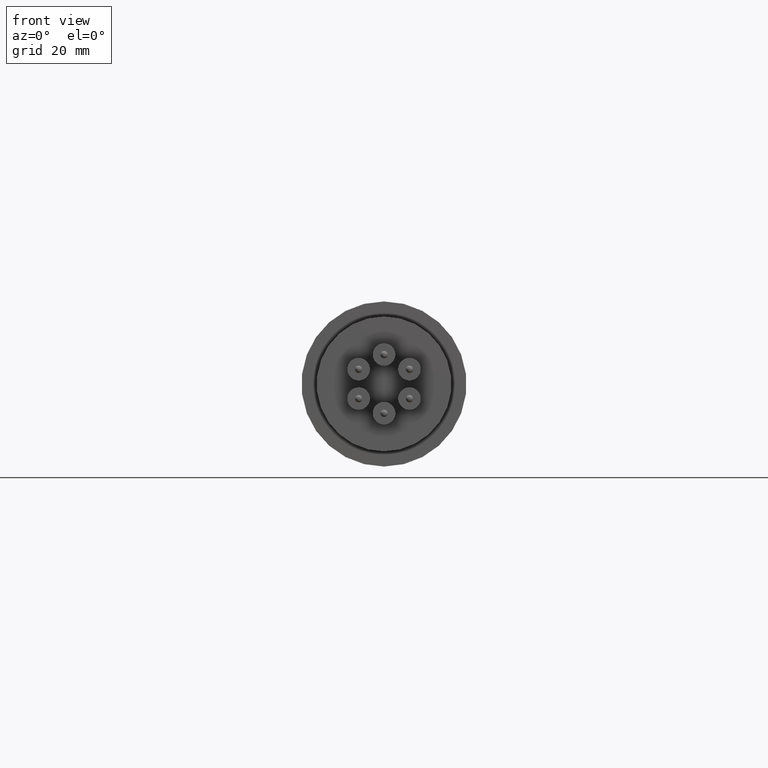
[diagram: clean part render]
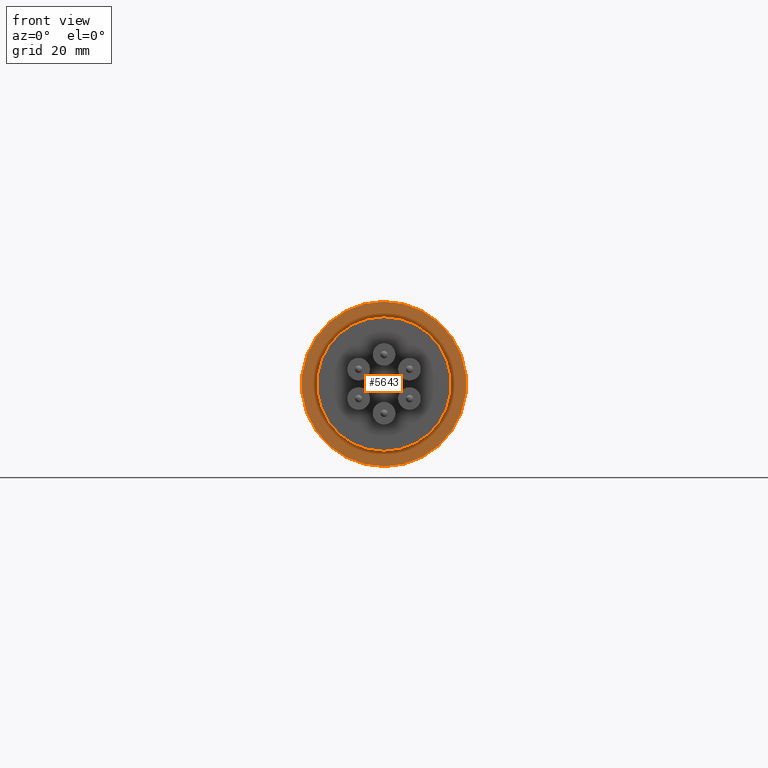
[diagram: same view with one face highlighted and labeled with its STEP entity id]
A machine part, front view. The second image highlights one B-rep face of the part: STEP entity #5643.
In plain terms, the highlighted planar face has unit normal (0, -1, 0).
Its self-contained STEP definition (entity closure, byte-faithful):
#573 = CARTESIAN_POINT ( 'NONE',  ( -0.02489983635234983100, 0.4853060942444241100, 0.0000000000000000000 ) ) ;
#574 = DIRECTION ( 'NONE',  ( 0.0000000000000000000, 1.000000000000000000, 0.0000000000000000000 ) ) ;
#575 = DIRECTION ( 'NONE',  ( 0.0000000000000000000, 0.0000000000000000000, 1.000000000000000000 ) ) ;
#854 = AXIS2_PLACEMENT_3D ( 'NONE', #4005, #4012, #4013 ) ;
#934 = AXIS2_PLACEMENT_3D ( 'NONE', #3685, #3686, #3687 ) ;
#1025 = AXIS2_PLACEMENT_3D ( 'NONE', #573, #574, #575 ) ;
#1129 = AXIS2_PLACEMENT_3D ( 'NONE', #5151, #5147, #5146 ) ;
#1135 = AXIS2_PLACEMENT_3D ( 'NONE', #5192, #5191, #4965 ) ;
#1542 = VERTEX_POINT ( 'NONE', #6078 ) ;
#1615 = VERTEX_POINT ( 'NONE', #5960 ) ;
#1635 = VERTEX_POINT ( 'NONE', #5940 ) ;
#1660 = VERTEX_POINT ( 'NONE', #5915 ) ;
#2570 = ORIENTED_EDGE ( 'NONE', *, *, #4350, .T. ) ;
#2571 = ORIENTED_EDGE ( 'NONE', *, *, #4077, .T. ) ;
#2572 = ORIENTED_EDGE ( 'NONE', *, *, #4240, .F. ) ;
#2573 = ORIENTED_EDGE ( 'NONE', *, *, #4083, .F. ) ;
#3489 = FACE_BOUND ( 'NONE', #4613, .T. ) ;
#3491 = FACE_OUTER_BOUND ( 'NONE', #4612, .T. ) ;
#3685 = CARTESIAN_POINT ( 'NONE',  ( -0.02489983635234983100, 0.4853060942444241100, 0.0000000000000000000 ) ) ;
#3686 = DIRECTION ( 'NONE',  ( 0.0000000000000000000, 1.000000000000000000, 0.0000000000000000000 ) ) ;
#3687 = DIRECTION ( 'NONE',  ( 0.0000000000000000000, 0.0000000000000000000, 1.000000000000000000 ) ) ;
#4005 = CARTESIAN_POINT ( 'NONE',  ( -0.6498998363523498200, 0.4853060942444241100, 0.0000000000000000000 ) ) ;
#4010 = PLANE ( 'NONE',  #854 ) ;
#4012 = DIRECTION ( 'NONE',  ( 0.0000000000000000000, -1.000000000000000000, 0.0000000000000000000 ) ) ;
#4013 = DIRECTION ( 'NONE',  ( 0.0000000000000000000, -0.0000000000000000000, -1.000000000000000000 ) ) ;
#4077 = EDGE_CURVE ( 'NONE', #1660, #1635, #6835, .T. ) ;
#4083 = EDGE_CURVE ( 'NONE', #1615, #1542, #6829, .T. ) ;
#4240 = EDGE_CURVE ( 'NONE', #1542, #1615, #6633, .T. ) ;
#4350 = EDGE_CURVE ( 'NONE', #1635, #1660, #6495, .T. ) ;
#4612 = EDGE_LOOP ( 'NONE', ( #2572, #2573 ) ) ;
#4613 = EDGE_LOOP ( 'NONE', ( #2570, #2571 ) ) ;
#4965 = DIRECTION ( 'NONE',  ( 0.0000000000000000000, 0.0000000000000000000, 1.000000000000000000 ) ) ;
#5146 = DIRECTION ( 'NONE',  ( 0.0000000000000000000, 0.0000000000000000000, 1.000000000000000000 ) ) ;
#5147 = DIRECTION ( 'NONE',  ( 0.0000000000000000000, 1.000000000000000000, 0.0000000000000000000 ) ) ;
#5151 = CARTESIAN_POINT ( 'NONE',  ( -0.02489983635234983100, 0.4853060942444241100, 0.0000000000000000000 ) ) ;
#5191 = DIRECTION ( 'NONE',  ( 0.0000000000000000000, 1.000000000000000000, 0.0000000000000000000 ) ) ;
#5192 = CARTESIAN_POINT ( 'NONE',  ( -0.02489983635234983100, 0.4853060942444241100, 0.0000000000000000000 ) ) ;
#5643 = ADVANCED_FACE ( 'NONE', ( #3489, #3491 ), #4010, .T. ) ;
#5915 = CARTESIAN_POINT ( 'NONE',  ( -0.02489983635234976900, 0.4853060942444241100, -0.5100000000000000100 ) ) ;
#5940 = CARTESIAN_POINT ( 'NONE',  ( -0.02489983635234983100, 0.4853060942444241100, 0.5100000000000000100 ) ) ;
#5960 = CARTESIAN_POINT ( 'NONE',  ( -0.02489983635234975500, 0.4853060942444241100, -0.6250000000000000000 ) ) ;
#6078 = CARTESIAN_POINT ( 'NONE',  ( -0.02489983635234983100, 0.4853060942444241100, 0.6250000000000000000 ) ) ;
#6495 = CIRCLE ( 'NONE', #934, 0.5100000000000000100 ) ;
#6633 = CIRCLE ( 'NONE', #1025, 0.6250000000000000000 ) ;
#6829 = CIRCLE ( 'NONE', #1129, 0.6250000000000000000 ) ;
#6835 = CIRCLE ( 'NONE', #1135, 0.5100000000000000100 ) ;